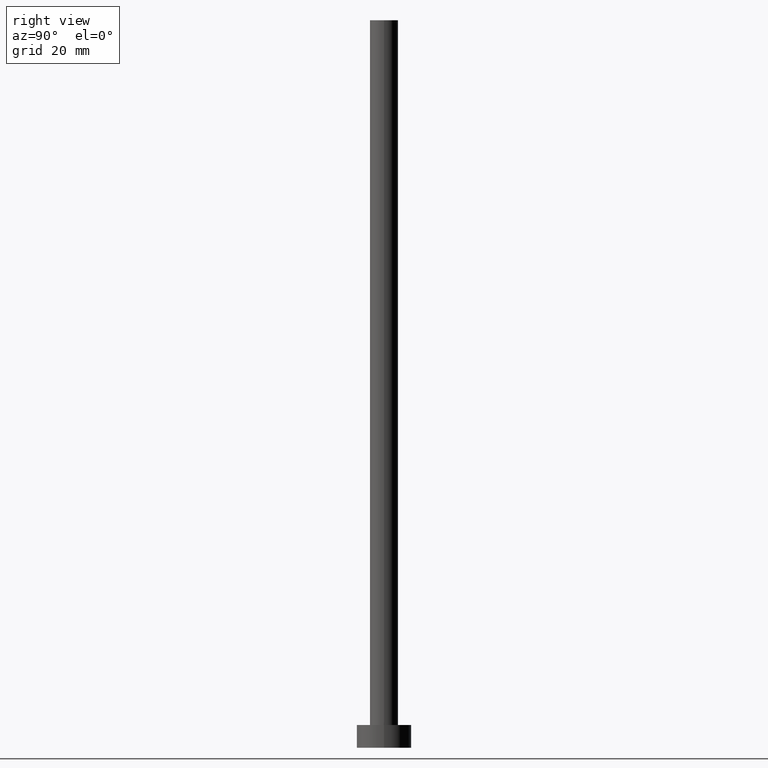
[diagram: clean part render]
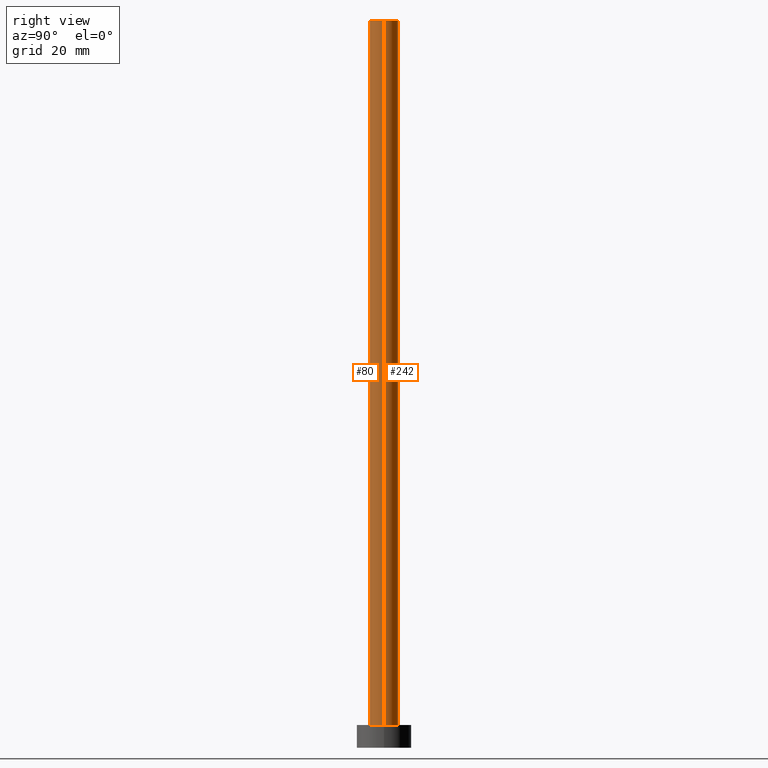
[diagram: same view with one multi-face feature highlighted, each face labeled with its STEP entity id]
A machine part, right view. The highlighted faces form ONE feature: a constant-radius fillet chain: 2 tangent blend faces with common blend radius 3.1 mm. The faces share edges in the B-rep.
Their STEP definitions:
[1] entity #80 (Cylinder):
#5 = EDGE_CURVE ( 'NONE', #246, #133, #34, .T. ) ;
#12 = VERTEX_POINT ( 'NONE', #207 ) ;
#17 = CARTESIAN_POINT ( 'NONE',  ( 0.000000000000000000, 0.000000000000000000, 5.000000000000000000 ) ) ;
#27 = CARTESIAN_POINT ( 'NONE',  ( 0.000000000000000000, 0.000000000000000000, 160.0000000000000000 ) ) ;
#34 = LINE ( 'NONE', #128, #203 ) ;
#42 = VECTOR ( 'NONE', #90, 1000.000000000000000 ) ;
#44 = EDGE_CURVE ( 'NONE', #246, #154, #142, .T. ) ;
#49 = ORIENTED_EDGE ( 'NONE', *, *, #44, .F. ) ;
#51 = DIRECTION ( 'NONE',  ( -0.000000000000000000, -0.000000000000000000, -1.000000000000000000 ) ) ;
#63 = AXIS2_PLACEMENT_3D ( 'NONE', #17, #152, #191 ) ;
#73 = DIRECTION ( 'NONE',  ( -0.000000000000000000, -0.000000000000000000, -1.000000000000000000 ) ) ;
#76 = DIRECTION ( 'NONE',  ( 0.000000000000000000, 0.000000000000000000, 1.000000000000000000 ) ) ;
#80 = ADVANCED_FACE ( 'NONE', ( #143 ), #129, .T. ) ;
#83 = LINE ( 'NONE', #131, #42 ) ;
#89 = AXIS2_PLACEMENT_3D ( 'NONE', #255, #76, #192 ) ;
#90 = DIRECTION ( 'NONE',  ( -0.000000000000000000, -0.000000000000000000, -1.000000000000000000 ) ) ;
#92 = CARTESIAN_POINT ( 'NONE',  ( -3.100000000000000089, 0.000000000000000000, 5.000000000000000000 ) ) ;
#109 = EDGE_CURVE ( 'NONE', #154, #12, #83, .T. ) ;
#112 = AXIS2_PLACEMENT_3D ( 'NONE', #27, #73, #194 ) ;
#114 = ORIENTED_EDGE ( 'NONE', *, *, #5, .T. ) ;
#119 = CARTESIAN_POINT ( 'NONE',  ( -3.100000000000000089, 0.000000000000000000, 160.0000000000000000 ) ) ;
#128 = CARTESIAN_POINT ( 'NONE',  ( -3.100000000000000089, 0.000000000000000000, 160.0000000000000000 ) ) ;
#129 = CYLINDRICAL_SURFACE ( 'NONE', #112, 3.100000000000000089 ) ;
#131 = CARTESIAN_POINT ( 'NONE',  ( 3.100000000000000089, 3.796405077356794918E-16, 160.0000000000000000 ) ) ;
#133 = VERTEX_POINT ( 'NONE', #92 ) ;
#135 = EDGE_CURVE ( 'NONE', #133, #12, #180, .T. ) ;
#142 = CIRCLE ( 'NONE', #89, 3.100000000000000089 ) ;
#143 = FACE_OUTER_BOUND ( 'NONE', #193, .T. ) ;
#152 = DIRECTION ( 'NONE',  ( 0.000000000000000000, 0.000000000000000000, 1.000000000000000000 ) ) ;
#154 = VERTEX_POINT ( 'NONE', #206 ) ;
#180 = CIRCLE ( 'NONE', #63, 3.100000000000000089 ) ;
#191 = DIRECTION ( 'NONE',  ( 1.000000000000000000, 0.000000000000000000, 0.000000000000000000 ) ) ;
#192 = DIRECTION ( 'NONE',  ( 1.000000000000000000, 0.000000000000000000, 0.000000000000000000 ) ) ;
#193 = EDGE_LOOP ( 'NONE', ( #229, #49, #114, #214 ) ) ;
#194 = DIRECTION ( 'NONE',  ( -1.000000000000000000, 0.000000000000000000, 0.000000000000000000 ) ) ;
#203 = VECTOR ( 'NONE', #51, 1000.000000000000000 ) ;
#206 = CARTESIAN_POINT ( 'NONE',  ( 3.100000000000000089, 3.796405077356794918E-16, 160.0000000000000000 ) ) ;
#207 = CARTESIAN_POINT ( 'NONE',  ( 3.100000000000000089, 3.796405077356794918E-16, 5.000000000000000000 ) ) ;
#214 = ORIENTED_EDGE ( 'NONE', *, *, #135, .T. ) ;
#229 = ORIENTED_EDGE ( 'NONE', *, *, #109, .F. ) ;
#246 = VERTEX_POINT ( 'NONE', #119 ) ;
#255 = CARTESIAN_POINT ( 'NONE',  ( 0.000000000000000000, 0.000000000000000000, 160.0000000000000000 ) ) ;
[2] entity #242 (Cylinder):
#5 = EDGE_CURVE ( 'NONE', #246, #133, #34, .T. ) ;
#12 = VERTEX_POINT ( 'NONE', #207 ) ;
#13 = AXIS2_PLACEMENT_3D ( 'NONE', #88, #173, #236 ) ;
#22 = AXIS2_PLACEMENT_3D ( 'NONE', #31, #158, #24 ) ;
#24 = DIRECTION ( 'NONE',  ( -1.000000000000000000, 0.000000000000000000, 0.000000000000000000 ) ) ;
#31 = CARTESIAN_POINT ( 'NONE',  ( 0.000000000000000000, 0.000000000000000000, 160.0000000000000000 ) ) ;
#34 = LINE ( 'NONE', #128, #203 ) ;
#38 = EDGE_CURVE ( 'NONE', #154, #246, #61, .T. ) ;
#42 = VECTOR ( 'NONE', #90, 1000.000000000000000 ) ;
#51 = DIRECTION ( 'NONE',  ( -0.000000000000000000, -0.000000000000000000, -1.000000000000000000 ) ) ;
#52 = CYLINDRICAL_SURFACE ( 'NONE', #22, 3.100000000000000089 ) ;
#61 = CIRCLE ( 'NONE', #13, 3.100000000000000089 ) ;
#83 = LINE ( 'NONE', #131, #42 ) ;
#86 = ORIENTED_EDGE ( 'NONE', *, *, #5, .F. ) ;
#88 = CARTESIAN_POINT ( 'NONE',  ( 0.000000000000000000, 0.000000000000000000, 160.0000000000000000 ) ) ;
#90 = DIRECTION ( 'NONE',  ( -0.000000000000000000, -0.000000000000000000, -1.000000000000000000 ) ) ;
#92 = CARTESIAN_POINT ( 'NONE',  ( -3.100000000000000089, 0.000000000000000000, 5.000000000000000000 ) ) ;
#99 = CIRCLE ( 'NONE', #130, 3.100000000000000089 ) ;
#109 = EDGE_CURVE ( 'NONE', #154, #12, #83, .T. ) ;
#119 = CARTESIAN_POINT ( 'NONE',  ( -3.100000000000000089, 0.000000000000000000, 160.0000000000000000 ) ) ;
#128 = CARTESIAN_POINT ( 'NONE',  ( -3.100000000000000089, 0.000000000000000000, 160.0000000000000000 ) ) ;
#130 = AXIS2_PLACEMENT_3D ( 'NONE', #245, #172, #248 ) ;
#131 = CARTESIAN_POINT ( 'NONE',  ( 3.100000000000000089, 3.796405077356794918E-16, 160.0000000000000000 ) ) ;
#133 = VERTEX_POINT ( 'NONE', #92 ) ;
#146 = EDGE_LOOP ( 'NONE', ( #252, #231, #227, #86 ) ) ;
#154 = VERTEX_POINT ( 'NONE', #206 ) ;
#158 = DIRECTION ( 'NONE',  ( -0.000000000000000000, -0.000000000000000000, -1.000000000000000000 ) ) ;
#172 = DIRECTION ( 'NONE',  ( 0.000000000000000000, 0.000000000000000000, 1.000000000000000000 ) ) ;
#173 = DIRECTION ( 'NONE',  ( 0.000000000000000000, 0.000000000000000000, 1.000000000000000000 ) ) ;
#201 = EDGE_CURVE ( 'NONE', #12, #133, #99, .T. ) ;
#203 = VECTOR ( 'NONE', #51, 1000.000000000000000 ) ;
#206 = CARTESIAN_POINT ( 'NONE',  ( 3.100000000000000089, 3.796405077356794918E-16, 160.0000000000000000 ) ) ;
#207 = CARTESIAN_POINT ( 'NONE',  ( 3.100000000000000089, 3.796405077356794918E-16, 5.000000000000000000 ) ) ;
#227 = ORIENTED_EDGE ( 'NONE', *, *, #201, .T. ) ;
#230 = FACE_OUTER_BOUND ( 'NONE', #146, .T. ) ;
#231 = ORIENTED_EDGE ( 'NONE', *, *, #109, .T. ) ;
#236 = DIRECTION ( 'NONE',  ( 1.000000000000000000, 0.000000000000000000, 0.000000000000000000 ) ) ;
#242 = ADVANCED_FACE ( 'NONE', ( #230 ), #52, .T. ) ;
#245 = CARTESIAN_POINT ( 'NONE',  ( 0.000000000000000000, 0.000000000000000000, 5.000000000000000000 ) ) ;
#246 = VERTEX_POINT ( 'NONE', #119 ) ;
#248 = DIRECTION ( 'NONE',  ( 1.000000000000000000, 0.000000000000000000, 0.000000000000000000 ) ) ;
#252 = ORIENTED_EDGE ( 'NONE', *, *, #38, .F. ) ;